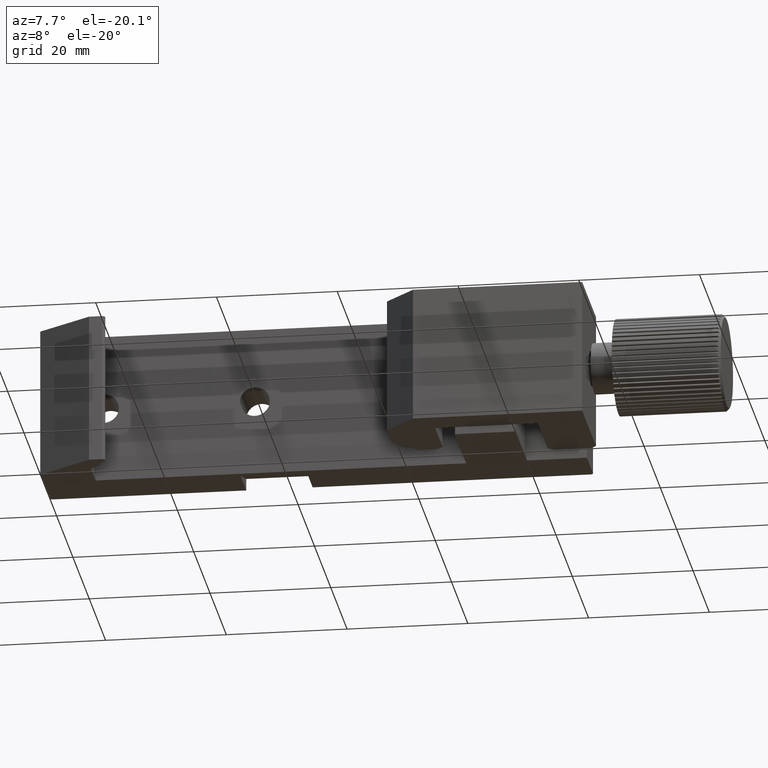
[diagram: clean part render]
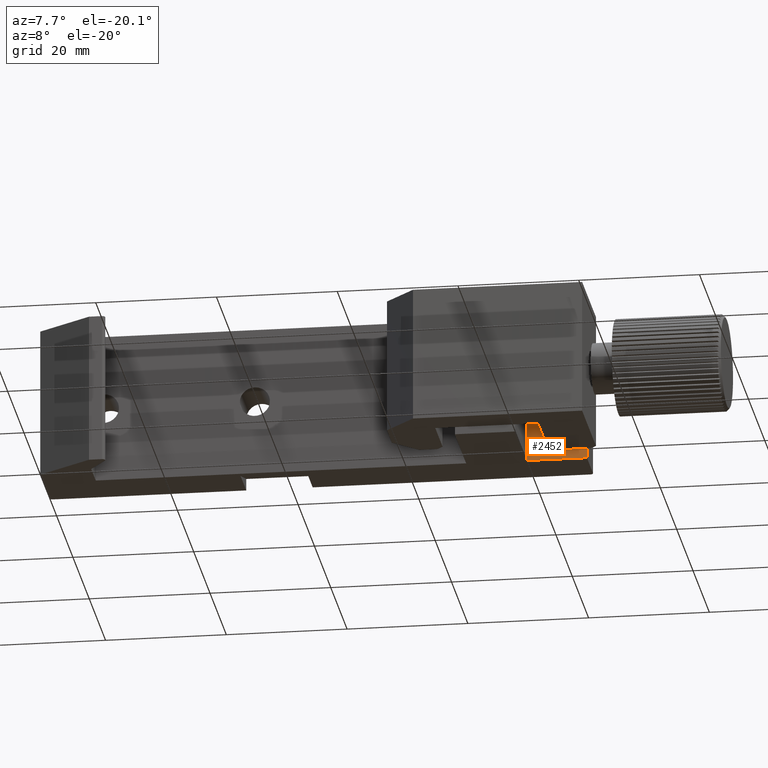
[diagram: same view with one face highlighted and labeled with its STEP entity id]
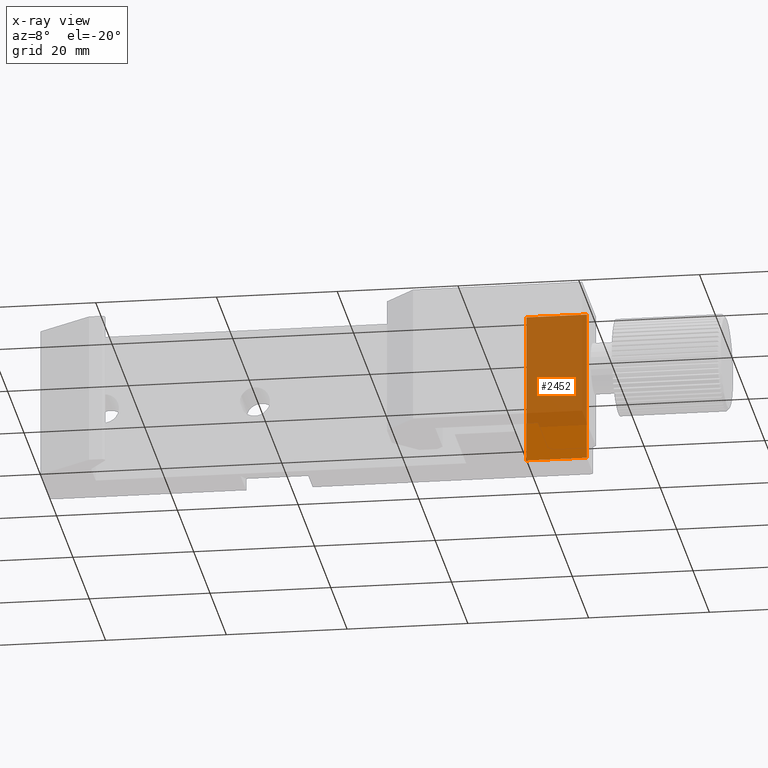
[diagram: x-ray of the same camera — body ghosted, the highlighted face saturated]
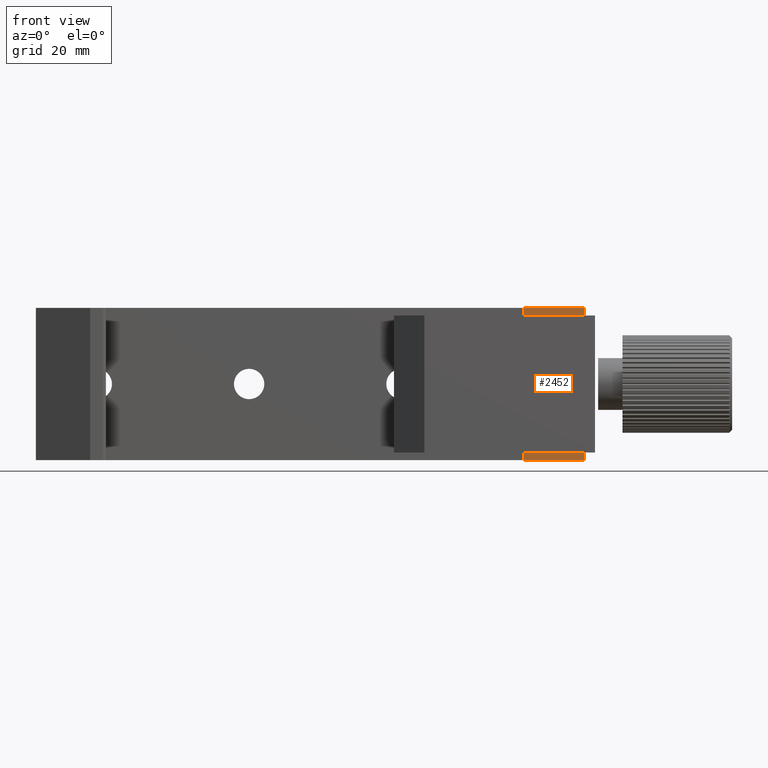
[diagram: same view with one face highlighted and labeled with its STEP entity id]
A machine part, auxiliary view. The second image highlights one B-rep face of the part: STEP entity #2452.
The next image is the same camera in x-ray: the body ghosted, the highlighted face saturated — about 77% of this face is hidden behind the body in this view.
A second angle (front view) of the same face is appended — the face is thin or edge-on in the first view.
In plain terms, the highlighted planar face has unit normal (-0, 1, 0).
Its self-contained STEP definition (entity closure, byte-faithful):
#837 = LINE ( 'NONE', #6361, #844 ) ;
#841 = LINE ( 'NONE', #6365, #848 ) ;
#843 = LINE ( 'NONE', #6372, #846 ) ;
#844 = VECTOR ( 'NONE', #6371, 1000.000000000000000 ) ;
#846 = VECTOR ( 'NONE', #6374, 1000.000000000000000 ) ;
#847 = LINE ( 'NONE', #6376, #850 ) ;
#848 = VECTOR ( 'NONE', #6375, 1000.000000000000000 ) ;
#850 = VECTOR ( 'NONE', #6377, 1000.000000000000000 ) ;
#2226 = CARTESIAN_POINT ( 'NONE',  ( -0.6851277403306654800, 9.059530426956769100, -12.50000000000000000 ) ) ;
#2228 = CARTESIAN_POINT ( 'NONE',  ( 9.314872259669336100, 9.059530426956770900, -12.50000000000000000 ) ) ;
#2229 = CARTESIAN_POINT ( 'NONE',  ( 9.314872259669336100, 9.059530426956770900, 12.50000000000000000 ) ) ;
#2232 = CARTESIAN_POINT ( 'NONE',  ( -0.6851277403306654800, 9.059530426956769100, 12.50000000000000000 ) ) ;
#2452 = ADVANCED_FACE ( 'NONE', ( #4721 ), #2851, .F. ) ;
#2677 = AXIS2_PLACEMENT_3D ( 'NONE', #2847, #2853, #2854 ) ;
#2847 = CARTESIAN_POINT ( 'NONE',  ( 9.314872259669336100, 9.059530426956770900, 12.50000000000000000 ) ) ;
#2851 = PLANE ( 'NONE',  #2677 ) ;
#2853 = DIRECTION ( 'NONE',  ( -1.734723475976807100E-016, 1.000000000000000000, 0.0000000000000000000 ) ) ;
#2854 = DIRECTION ( 'NONE',  ( -1.000000000000000000, -1.734723475976807100E-016, 0.0000000000000000000 ) ) ;
#3486 = EDGE_LOOP ( 'NONE', ( #3577, #3578, #3579, #3580 ) ) ;
#3577 = ORIENTED_EDGE ( 'NONE', *, *, #6929, .T. ) ;
#3578 = ORIENTED_EDGE ( 'NONE', *, *, #6928, .F. ) ;
#3579 = ORIENTED_EDGE ( 'NONE', *, *, #6930, .F. ) ;
#3580 = ORIENTED_EDGE ( 'NONE', *, *, #6931, .T. ) ;
#4721 = FACE_OUTER_BOUND ( 'NONE', #3486, .T. ) ;
#4988 = VERTEX_POINT ( 'NONE', #2226 ) ;
#4990 = VERTEX_POINT ( 'NONE', #2228 ) ;
#4991 = VERTEX_POINT ( 'NONE', #2229 ) ;
#4994 = VERTEX_POINT ( 'NONE', #2232 ) ;
#6361 = CARTESIAN_POINT ( 'NONE',  ( 9.314872259669336100, 9.059530426956770900, 12.50000000000000000 ) ) ;
#6365 = CARTESIAN_POINT ( 'NONE',  ( 9.314872259669336100, 9.059530426956770900, 12.50000000000000000 ) ) ;
#6371 = DIRECTION ( 'NONE',  ( -0.0000000000000000000, -0.0000000000000000000, -1.000000000000000000 ) ) ;
#6372 = CARTESIAN_POINT ( 'NONE',  ( 9.314872259669336100, 9.059530426956770900, -12.50000000000000000 ) ) ;
#6374 = DIRECTION ( 'NONE',  ( 1.000000000000000000, 1.734723475976806800E-016, -0.0000000000000000000 ) ) ;
#6375 = DIRECTION ( 'NONE',  ( 1.000000000000000000, 1.734723475976806800E-016, -0.0000000000000000000 ) ) ;
#6376 = CARTESIAN_POINT ( 'NONE',  ( -0.6851277403306654800, 9.059530426956769100, 12.50000000000000000 ) ) ;
#6377 = DIRECTION ( 'NONE',  ( -0.0000000000000000000, -0.0000000000000000000, -1.000000000000000000 ) ) ;
#6928 = EDGE_CURVE ( 'NONE', #4991, #4990, #837, .T. ) ;
#6929 = EDGE_CURVE ( 'NONE', #4988, #4990, #843, .T. ) ;
#6930 = EDGE_CURVE ( 'NONE', #4994, #4991, #841, .T. ) ;
#6931 = EDGE_CURVE ( 'NONE', #4994, #4988, #847, .T. ) ;